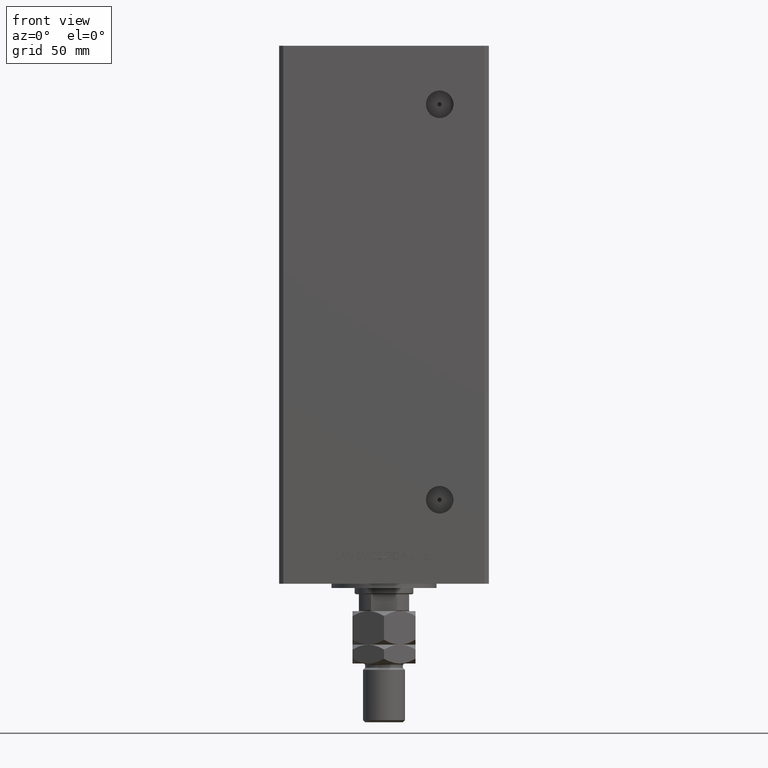
[diagram: clean part render]
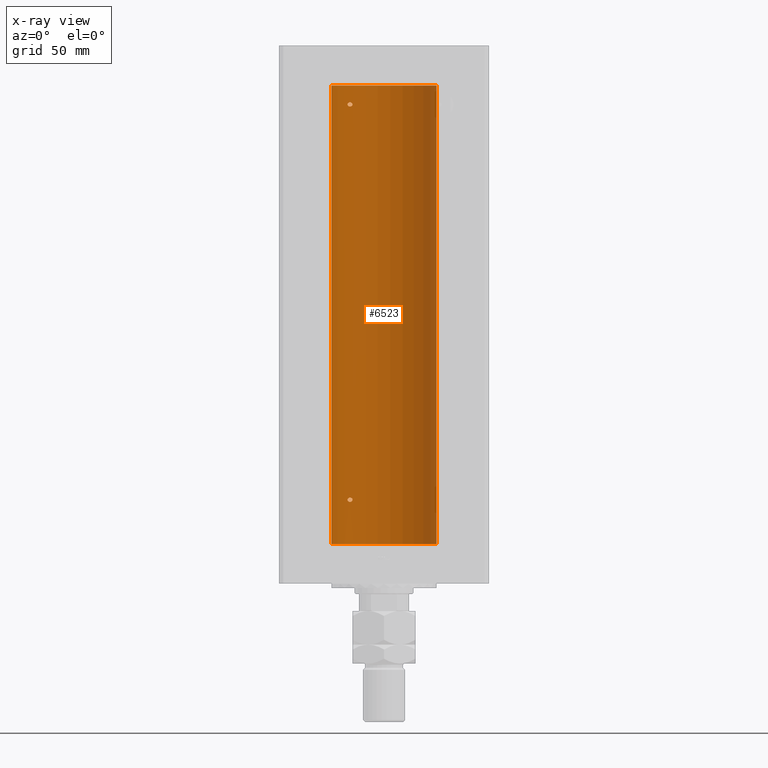
[diagram: x-ray — body ghosted, one internal face saturated and labeled with its STEP entity id]
A machine part, front view, then the same camera in x-ray: the body is ghosted and one INTERNAL B-rep face — a face not visible from any outside direction — is saturated and labeled: STEP entity #6523.
In plain terms, the highlighted cylindrical surface (partial cylindrical patch) has radius 25 mm, axis along (-0, -0, -1).
Its self-contained STEP definition (entity closure, byte-faithful):
#13 = CARTESIAN_POINT ( 'NONE',  ( -15.23594348686703448, 19.82115246225713179, 21.58872193268582151 ) ) ;
#161 = CARTESIAN_POINT ( 'NONE',  ( -15.70664578139651546, 19.45064696206092947, 208.6005795994921925 ) ) ;
#174 = ORIENTED_EDGE ( 'NONE', *, *, #15283, .F. ) ;
#378 = DIRECTION ( 'NONE',  ( -0.000000000000000000, 0.000000000000000000, 1.000000000000000000 ) ) ;
#763 = CARTESIAN_POINT ( 'NONE',  ( -15.95796937689564565, 19.24499537862563869, 21.97577309965217651 ) ) ;
#887 = CARTESIAN_POINT ( 'NONE',  ( 0.000000000000000000, 0.000000000000000000, 0.000000000000000000 ) ) ;
#1388 = CARTESIAN_POINT ( 'NONE',  ( -16.72476285461317502, 18.58415905903083498, 210.4449447607957211 ) ) ;
#1525 = CARTESIAN_POINT ( 'NONE',  ( -16.46913072925707056, 18.81168496547888580, 22.00577755881141329 ) ) ;
#1645 = CARTESIAN_POINT ( 'NONE',  ( -15.10490800566735103, 19.92096305044241689, 209.8962931740442457 ) ) ;
#1955 = CARTESIAN_POINT ( 'NONE',  ( -15.00000000000002842, 19.99999999999998224, 20.99999999999998934 ) ) ;
#2223 = CARTESIAN_POINT ( 'NONE',  ( -17.34935157289810093, 17.99999999999978328, 21.00000000000008882 ) ) ;
#2415 = EDGE_LOOP ( 'NONE', ( #43658, #13233, #15934, #20360 ) ) ;
#3003 = CARTESIAN_POINT ( 'NONE',  ( -15.06722189748651175, 19.94943357555936458, 20.67598032487887849 ) ) ;
#4189 = CARTESIAN_POINT ( 'NONE',  ( -15.10490800566739011, 19.92096305044238491, 21.39629317404425279 ) ) ;
#4235 = FACE_OUTER_BOUND ( 'NONE', #2415, .T. ) ;
#4552 = CARTESIAN_POINT ( 'NONE',  ( -15.95796937689560480, 19.24499537862567422, 210.4757730996522298 ) ) ;
#4691 = CARTESIAN_POINT ( 'NONE',  ( -17.34935157289749696, 17.99999999999998224, 21.17097369060632417 ) ) ;
#5063 = CARTESIAN_POINT ( 'NONE',  ( -15.34624284195505162, 19.73614442075940190, 210.1876185318512853 ) ) ;
#5440 = CARTESIAN_POINT ( 'NONE',  ( -17.14593038898733113, 18.19399314418732061, 21.59594488319649130 ) ) ;
#5572 = LINE ( 'NONE', #44804, #6277 ) ;
#6042 = CARTESIAN_POINT ( 'NONE',  ( -17.34935157289806185, 17.99999999999981526, 209.5000000000001137 ) ) ;
#6079 = DIRECTION ( 'NONE',  ( -0.000000000000000000, -0.000000000000000000, -1.000000000000000000 ) ) ;
#6277 = VECTOR ( 'NONE', #20986, 1000.000000000000000 ) ;
#6406 = CARTESIAN_POINT ( 'NONE',  ( -17.34935157289749696, 17.99999999999998579, 20.82899836042580688 ) ) ;
#6523 = ADVANCED_FACE ( 'NONE', ( #4235, #11796, #7886 ), #40283, .F. ) ;
#6669 = CARTESIAN_POINT ( 'NONE',  ( -16.08757264251635277, 19.13682698743030386, 20.00344276584819525 ) ) ;
#6819 = VERTEX_POINT ( 'NONE', #32125 ) ;
#6955 = CARTESIAN_POINT ( 'NONE',  ( -15.34666241858318259, 19.73581294411415854, 208.8121224605376369 ) ) ;
#7648 = EDGE_LOOP ( 'NONE', ( #14445, #17865 ) ) ;
#7886 = FACE_BOUND ( 'NONE', #7648, .T. ) ;
#7995 = CARTESIAN_POINT ( 'NONE',  ( -14.99999999999999112, 20.00000000000000711, 209.5000000000000000 ) ) ;
#8713 = CARTESIAN_POINT ( 'NONE',  ( -15.00000000000018474, 20.00000000000002487, 209.5840388036241109 ) ) ;
#9107 = CARTESIAN_POINT ( 'NONE',  ( -17.19010376497224968, 18.15221652163108601, 21.53567012356800703 ) ) ;
#9219 = CARTESIAN_POINT ( 'NONE',  ( -14.99999999999999112, 20.00000000000000711, 209.5000000000000000 ) ) ;
#9351 = CARTESIAN_POINT ( 'NONE',  ( -15.70535969280557254, 19.45169171760800708, 21.89896077211249192 ) ) ;
#9653 = EDGE_CURVE ( 'NONE', #17866, #21848, #16268, .T. ) ;
#10114 = B_SPLINE_CURVE_WITH_KNOTS ( 'NONE', 3,
 ( #2223, #6406, #18142, #42474, #34360, #50300, #34617, #46384, #10566, #6669, #47619, #11792, #14731, #46648, #22841, #38810, #3003, #18920, #21791, #1955 ),
 .UNSPECIFIED., .F., .F.,
 ( 4, 2, 2, 2, 2, 2, 2, 2, 2, 4 ),
 ( 2.011680962688586771E-16, 0.0005040871078734975291, 0.001008174215746794047, 0.001512261323620090565, 0.002016348431493386866, 0.002520435539366683384, 0.003024522647239979902, 0.003528609755113272951, 0.003780653309049920342, 0.004032696862986568168 ),
 .UNSPECIFIED. ) ;
#10566 = CARTESIAN_POINT ( 'NONE',  ( -16.34293146994555812, 18.91921593628406129, 19.99734259067261277 ) ) ;
#10675 = EDGE_CURVE ( 'NONE', #17795, #17866, #5572, .T. ) ;
#11306 = AXIS2_PLACEMENT_3D ( 'NONE', #16222, #28743, #44221 ) ;
#11792 = CARTESIAN_POINT ( 'NONE',  ( -15.70664578139654566, 19.45064696206090105, 20.10057959949211082 ) ) ;
#11796 = FACE_BOUND ( 'NONE', #33935, .T. ) ;
#11898 = CARTESIAN_POINT ( 'NONE',  ( -15.23538646979298505, 19.82157806413532697, 208.9119998952828041 ) ) ;
#11998 = CARTESIAN_POINT ( 'NONE',  ( -15.58230678163764260, 19.55030131031895380, 21.84373948670293331 ) ) ;
#12627 = CARTESIAN_POINT ( 'NONE',  ( -15.23594348686699185, 19.82115246225716021, 210.0887219326858144 ) ) ;
#12679 = EDGE_CURVE ( 'NONE', #6819, #25385, #14585, .T. ) ;
#13233 = ORIENTED_EDGE ( 'NONE', *, *, #24945, .T. ) ;
#13632 = CARTESIAN_POINT ( 'NONE',  ( -16.46913072925702792, 18.81168496547891777, 210.5057775588113884 ) ) ;
#14155 = CIRCLE ( 'NONE', #24994, 25.00000000000000000 ) ;
#14445 = ORIENTED_EDGE ( 'NONE', *, *, #34368, .F. ) ;
#14585 = B_SPLINE_CURVE_WITH_KNOTS ( 'NONE', 3,
 ( #9219, #8713, #49210, #40358, #1645, #12627, #5063, #45550, #49459, #4552, #16546, #13632, #1388, #40871, #16792, #36439, #29593, #48455, #28571, #24651 ),
 .UNSPECIFIED., .F., .F.,
 ( 4, 2, 2, 2, 2, 2, 2, 2, 2, 4 ),
 ( 0.004032696862986557759, 0.004284699222246954667, 0.004536701581507351574, 0.005040706300028082940, 0.005544711018548810835, 0.006048715737069539598, 0.007056725174110996257, 0.007308727533371349797, 0.007560729892631701601, 0.008064734611152412150 ),
 .UNSPECIFIED. ) ;
#14731 = CARTESIAN_POINT ( 'NONE',  ( -15.58164749401203686, 19.55082150006403907, 20.15667807268518885 ) ) ;
#14941 = B_SPLINE_CURVE_WITH_KNOTS ( 'NONE', 3,
 ( #23254, #51232, #39991, #43404, #4189, #13, #31885, #11998, #9351, #763, #24523, #1525, #41247, #25290, #32391, #5440, #9107, #48335, #4691, #16429 ),
 .UNSPECIFIED., .F., .F.,
 ( 4, 2, 2, 2, 2, 2, 2, 2, 2, 4 ),
 ( 0.004032696862986568168, 0.004284699222246932983, 0.004536701581507298665, 0.005040706300028030031, 0.005544711018548761396, 0.006048715737069493628, 0.007056725174110963297, 0.007308727533371326378, 0.007560729892631690326, 0.008064734611152429497 ),
 .UNSPECIFIED. ) ;
#15035 = CARTESIAN_POINT ( 'NONE',  ( -17.05249165747618534, 18.28208333366438509, 208.7922192200363725 ) ) ;
#15283 = EDGE_CURVE ( 'NONE', #18884, #40252, #10114, .T. ) ;
#15934 = ORIENTED_EDGE ( 'NONE', *, *, #24287, .T. ) ;
#16082 = CARTESIAN_POINT ( 'NONE',  ( -17.34935157289747210, 18.00000000000002132, 209.3289983604257998 ) ) ;
#16222 = CARTESIAN_POINT ( 'NONE',  ( 0.000000000000000000, 0.000000000000000000, 218.5000000000000000 ) ) ;
#16268 = CIRCLE ( 'NONE', #21248, 25.00000000000000000 ) ;
#16429 = CARTESIAN_POINT ( 'NONE',  ( -17.34935157289810093, 17.99999999999978328, 21.00000000000008882 ) ) ;
#16546 = CARTESIAN_POINT ( 'NONE',  ( -16.08745393861402917, 19.13692152169251059, 210.4965015099869277 ) ) ;
#16792 = CARTESIAN_POINT ( 'NONE',  ( -17.05007833789892047, 18.28384926940287869, 210.2013739990121337 ) ) ;
#16821 = CARTESIAN_POINT ( 'NONE',  ( 0.000000000000000000, 0.000000000000000000, 218.5000000000000000 ) ) ;
#17795 = VERTEX_POINT ( 'NONE', #47828 ) ;
#17865 = ORIENTED_EDGE ( 'NONE', *, *, #12679, .F. ) ;
#17866 = VERTEX_POINT ( 'NONE', #33411 ) ;
#18142 = CARTESIAN_POINT ( 'NONE',  ( -17.30269557861145202, 18.04515136187498570, 20.66604208175573376 ) ) ;
#18534 = CARTESIAN_POINT ( 'NONE',  ( -15.00000000000002842, 19.99999999999998224, 20.99999999999998934 ) ) ;
#18884 = VERTEX_POINT ( 'NONE', #50393 ) ;
#18920 = CARTESIAN_POINT ( 'NONE',  ( -15.01482636753736166, 19.98889854010113254, 20.83120266100769769 ) ) ;
#19477 = CARTESIAN_POINT ( 'NONE',  ( -15.10490010356605595, 19.92096840819819903, 209.1037666713224894 ) ) ;
#19515 = B_SPLINE_CURVE_WITH_KNOTS ( 'NONE', 3,
 ( #20008, #16082, #35966, #51386, #15035, #35708, #32039, #27844, #34924, #27330, #42769, #161, #47725, #6955, #11898, #19477, #31260, #22880, #39375, #7995 ),
 .UNSPECIFIED., .F., .F.,
 ( 4, 2, 2, 2, 2, 2, 2, 2, 2, 4 ),
 ( 2.254873622441466949E-16, 0.0005040871078735091300, 0.001008174215746792746, 0.001512261323620076470, 0.002016348431493359978, 0.002520435539366643485, 0.003024522647239927427, 0.003528609755113210501, 0.003780653309049884347, 0.004032696862986557759 ),
 .UNSPECIFIED. ) ;
#19538 = CARTESIAN_POINT ( 'NONE',  ( -25.00000000000000000, 0.000000000000000000, 218.5000000000000000 ) ) ;
#20008 = CARTESIAN_POINT ( 'NONE',  ( -17.34935157289806185, 17.99999999999981526, 209.5000000000001137 ) ) ;
#20331 = CARTESIAN_POINT ( 'NONE',  ( -25.00000000000000000, 0.000000000000000000, 0.000000000000000000 ) ) ;
#20360 = ORIENTED_EDGE ( 'NONE', *, *, #9653, .F. ) ;
#20986 = DIRECTION ( 'NONE',  ( -0.000000000000000000, -0.000000000000000000, -1.000000000000000000 ) ) ;
#21248 = AXIS2_PLACEMENT_3D ( 'NONE', #887, #378, #48201 ) ;
#21766 = DIRECTION ( 'NONE',  ( -0.000000000000000000, 0.000000000000000000, 1.000000000000000000 ) ) ;
#21791 = CARTESIAN_POINT ( 'NONE',  ( -15.00000000000022027, 20.00000000000000355, 20.91594745860243165 ) ) ;
#21848 = VERTEX_POINT ( 'NONE', #20331 ) ;
#22841 = CARTESIAN_POINT ( 'NONE',  ( -15.23538646979301170, 19.82157806413531631, 20.41199989528276149 ) ) ;
#22880 = CARTESIAN_POINT ( 'NONE',  ( -15.01482636753733146, 19.98889854010115741, 209.3312026610076941 ) ) ;
#23254 = CARTESIAN_POINT ( 'NONE',  ( -15.00000000000002842, 19.99999999999998224, 20.99999999999998934 ) ) ;
#24287 = EDGE_CURVE ( 'NONE', #30339, #21848, #34830, .T. ) ;
#24523 = CARTESIAN_POINT ( 'NONE',  ( -16.08745393861406825, 19.13692152169247507, 21.99650150998692766 ) ) ;
#24651 = CARTESIAN_POINT ( 'NONE',  ( -17.34935157289806185, 17.99999999999981526, 209.5000000000001137 ) ) ;
#24945 = EDGE_CURVE ( 'NONE', #17795, #30339, #14155, .T. ) ;
#24994 = AXIS2_PLACEMENT_3D ( 'NONE', #16821, #21766, #49243 ) ;
#25290 = CARTESIAN_POINT ( 'NONE',  ( -16.99843849356152248, 18.33190197607051886, 21.74683351457564839 ) ) ;
#25385 = VERTEX_POINT ( 'NONE', #6042 ) ;
#27330 = CARTESIAN_POINT ( 'NONE',  ( -16.08757264251632080, 19.13682698743034649, 208.5034427658482059 ) ) ;
#27844 = CARTESIAN_POINT ( 'NONE',  ( -16.46844752485324648, 18.81003400474354947, 208.5115443190389612 ) ) ;
#28011 = EDGE_CURVE ( 'NONE', #40252, #18884, #14941, .T. ) ;
#28571 = CARTESIAN_POINT ( 'NONE',  ( -17.34935157289746854, 18.00000000000001421, 209.6709736906063029 ) ) ;
#28743 = DIRECTION ( 'NONE',  ( -0.000000000000000000, -0.000000000000000000, -1.000000000000000000 ) ) ;
#29593 = CARTESIAN_POINT ( 'NONE',  ( -17.19010376497220705, 18.15221652163111088, 210.0356701235680248 ) ) ;
#30164 = ORIENTED_EDGE ( 'NONE', *, *, #28011, .F. ) ;
#30339 = VERTEX_POINT ( 'NONE', #19538 ) ;
#31260 = CARTESIAN_POINT ( 'NONE',  ( -15.06722189748648866, 19.94943357555938590, 209.1759803248789069 ) ) ;
#31885 = CARTESIAN_POINT ( 'NONE',  ( -15.34624284195510135, 19.73614442075936992, 21.68761853185130306 ) ) ;
#32039 = CARTESIAN_POINT ( 'NONE',  ( -16.71492528194901794, 18.59135325782701642, 208.5801415583420351 ) ) ;
#32125 = CARTESIAN_POINT ( 'NONE',  ( -14.99999999999999112, 20.00000000000000711, 209.5000000000000000 ) ) ;
#32391 = CARTESIAN_POINT ( 'NONE',  ( -17.05007833789895955, 18.28384926940283606, 21.70137399901213371 ) ) ;
#33411 = CARTESIAN_POINT ( 'NONE',  ( 25.00000000000000000, 3.061616997868383043E-15, 0.000000000000000000 ) ) ;
#33935 = EDGE_LOOP ( 'NONE', ( #174, #30164 ) ) ;
#34360 = CARTESIAN_POINT ( 'NONE',  ( -17.05249165747622442, 18.28208333366434601, 20.29221922003641509 ) ) ;
#34368 = EDGE_CURVE ( 'NONE', #25385, #6819, #19515, .T. ) ;
#34617 = CARTESIAN_POINT ( 'NONE',  ( -16.71492528194906768, 18.59135325782697734, 20.08014155834204217 ) ) ;
#34830 = LINE ( 'NONE', #41637, #50903 ) ;
#34924 = CARTESIAN_POINT ( 'NONE',  ( -16.34293146994552259, 18.91921593628409681, 208.4973425906725879 ) ) ;
#35708 = CARTESIAN_POINT ( 'NONE',  ( -16.83415218046510731, 18.48332662461726983, 208.6343172662811583 ) ) ;
#35966 = CARTESIAN_POINT ( 'NONE',  ( -17.30269557861141294, 18.04515136187502478, 209.1660420817557053 ) ) ;
#36439 = CARTESIAN_POINT ( 'NONE',  ( -17.14593038898727428, 18.19399314418736324, 210.0959448831964664 ) ) ;
#38810 = CARTESIAN_POINT ( 'NONE',  ( -15.10490010356607904, 19.92096840819818127, 20.60376667132250716 ) ) ;
#39375 = CARTESIAN_POINT ( 'NONE',  ( -15.00000000000018119, 20.00000000000001421, 209.4159474586024032 ) ) ;
#39991 = CARTESIAN_POINT ( 'NONE',  ( -15.01476641895664876, 19.98894406010705183, 21.16879456340133459 ) ) ;
#40252 = VERTEX_POINT ( 'NONE', #18534 ) ;
#40283 = CYLINDRICAL_SURFACE ( 'NONE', #11306, 25.00000000000000000 ) ;
#40358 = CARTESIAN_POINT ( 'NONE',  ( -15.06763582406798818, 19.94912143246363811, 209.8250699387717475 ) ) ;
#40871 = CARTESIAN_POINT ( 'NONE',  ( -16.99843849356149050, 18.33190197607055794, 210.2468335145757123 ) ) ;
#41247 = CARTESIAN_POINT ( 'NONE',  ( -16.72476285461321766, 18.58415905903079945, 21.94494476079569978 ) ) ;
#41637 = CARTESIAN_POINT ( 'NONE',  ( -25.00000000000000000, 0.000000000000000000, 218.5000000000000000 ) ) ;
#42474 = CARTESIAN_POINT ( 'NONE',  ( -17.15234217094410596, 18.18812579706693100, 20.39657304377494640 ) ) ;
#42769 = CARTESIAN_POINT ( 'NONE',  ( -15.95808436639360117, 19.24489366819300784, 208.5242608788495886 ) ) ;
#43404 = CARTESIAN_POINT ( 'NONE',  ( -15.06763582406801483, 19.94912143246361325, 21.32506993877174395 ) ) ;
#43658 = ORIENTED_EDGE ( 'NONE', *, *, #10675, .F. ) ;
#44221 = DIRECTION ( 'NONE',  ( -1.000000000000000000, 0.000000000000000000, 0.000000000000000000 ) ) ;
#44804 = CARTESIAN_POINT ( 'NONE',  ( 25.00000000000000000, 3.061616997868383043E-15, 218.5000000000000000 ) ) ;
#45550 = CARTESIAN_POINT ( 'NONE',  ( -15.58230678163759642, 19.55030131031898577, 210.3437394867029582 ) ) ;
#46384 = CARTESIAN_POINT ( 'NONE',  ( -16.46844752485328911, 18.81003400474351039, 20.01154431903891862 ) ) ;
#46648 = CARTESIAN_POINT ( 'NONE',  ( -15.34666241858321634, 19.73581294411414078, 20.31212246053760495 ) ) ;
#47619 = CARTESIAN_POINT ( 'NONE',  ( -15.95808436639362782, 19.24489366819297942, 20.02426087884952821 ) ) ;
#47725 = CARTESIAN_POINT ( 'NONE',  ( -15.58164749401199956, 19.55082150006405328, 208.6566780726851391 ) ) ;
#47828 = CARTESIAN_POINT ( 'NONE',  ( 25.00000000000000000, 3.061616997868383043E-15, 218.5000000000000000 ) ) ;
#48201 = DIRECTION ( 'NONE',  ( 1.000000000000000000, 0.000000000000000000, 0.000000000000000000 ) ) ;
#48335 = CARTESIAN_POINT ( 'NONE',  ( -17.30163983552693452, 18.04615713653364750, 21.33600747272777909 ) ) ;
#48455 = CARTESIAN_POINT ( 'NONE',  ( -17.30163983552688833, 18.04615713653367948, 209.8360074727278572 ) ) ;
#49210 = CARTESIAN_POINT ( 'NONE',  ( -15.01476641895662567, 19.98894406010707314, 209.6687945634013488 ) ) ;
#49243 = DIRECTION ( 'NONE',  ( 1.000000000000000000, 0.000000000000000000, 0.000000000000000000 ) ) ;
#49459 = CARTESIAN_POINT ( 'NONE',  ( -15.70535969280552280, 19.45169171760802485, 210.3989607721124173 ) ) ;
#50300 = CARTESIAN_POINT ( 'NONE',  ( -16.83415218046515349, 18.48332662461723785, 20.13431726628115115 ) ) ;
#50393 = CARTESIAN_POINT ( 'NONE',  ( -17.34935157289810093, 17.99999999999978328, 21.00000000000008882 ) ) ;
#50903 = VECTOR ( 'NONE', #6079, 1000.000000000000000 ) ;
#51232 = CARTESIAN_POINT ( 'NONE',  ( -15.00000000000021316, 19.99999999999998934, 21.08403880362416061 ) ) ;
#51386 = CARTESIAN_POINT ( 'NONE',  ( -17.15234217094406333, 18.18812579706696653, 208.8965730437749073 ) ) ;